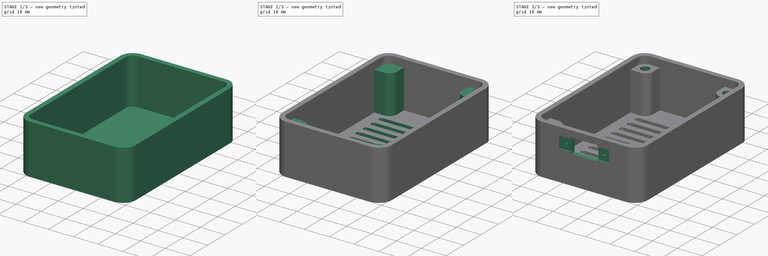
[diagram: build sequence overview — one tinted view per stage of 3, left to right]
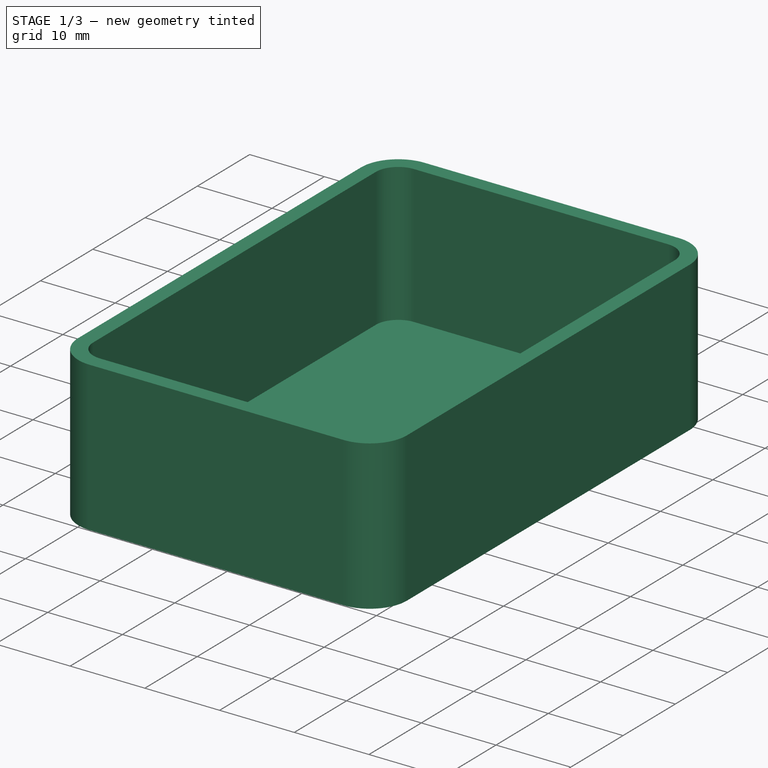
[diagram: stage 1 of 3 — iso view after this stage's code; geometry added in this stage tinted green]
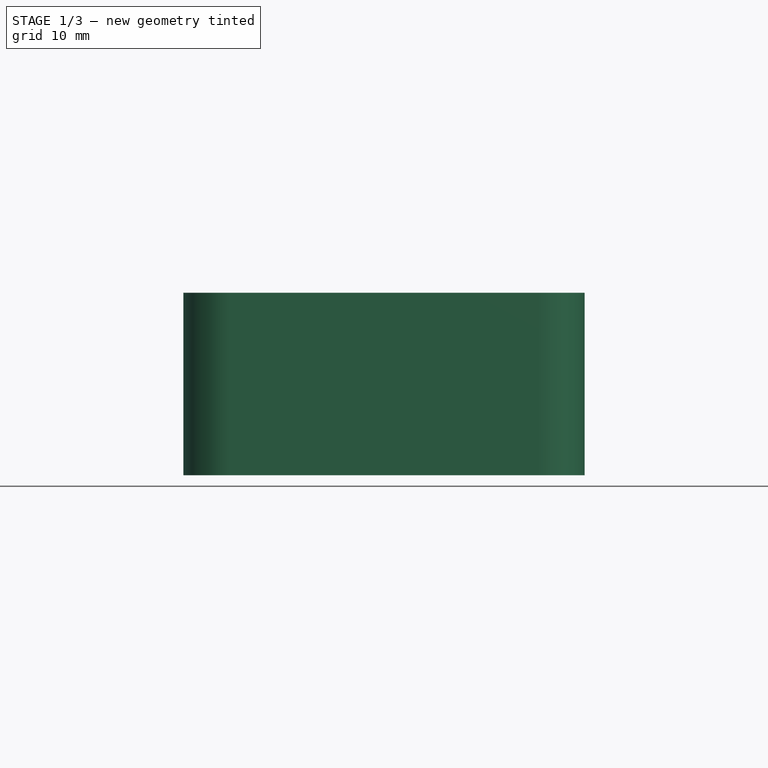
[diagram: stage 1 of 3 — front view after this stage's code; geometry added in this stage tinted green]
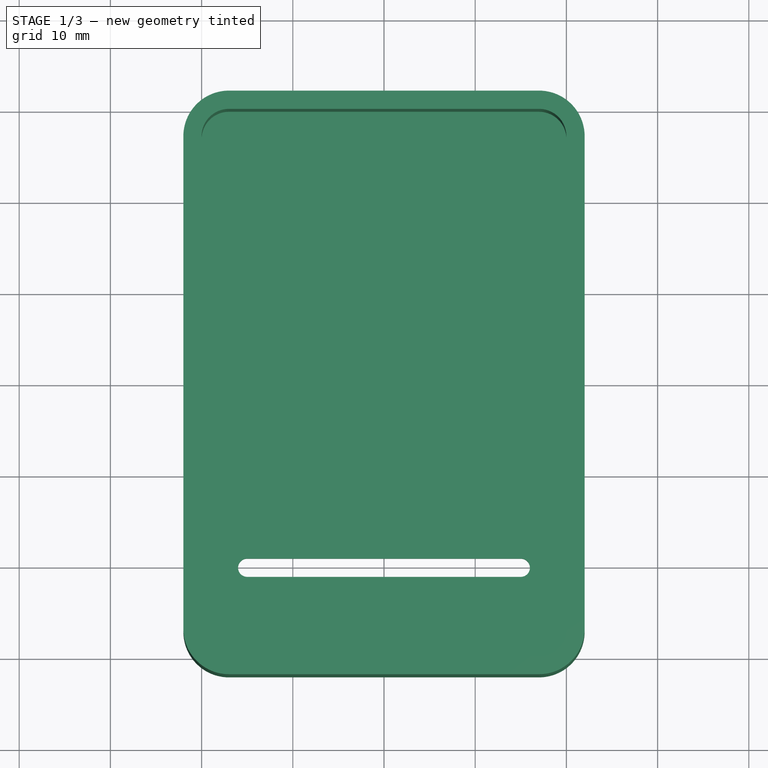
[diagram: stage 1 of 3 — top view after this stage's code; geometry added in this stage tinted green]
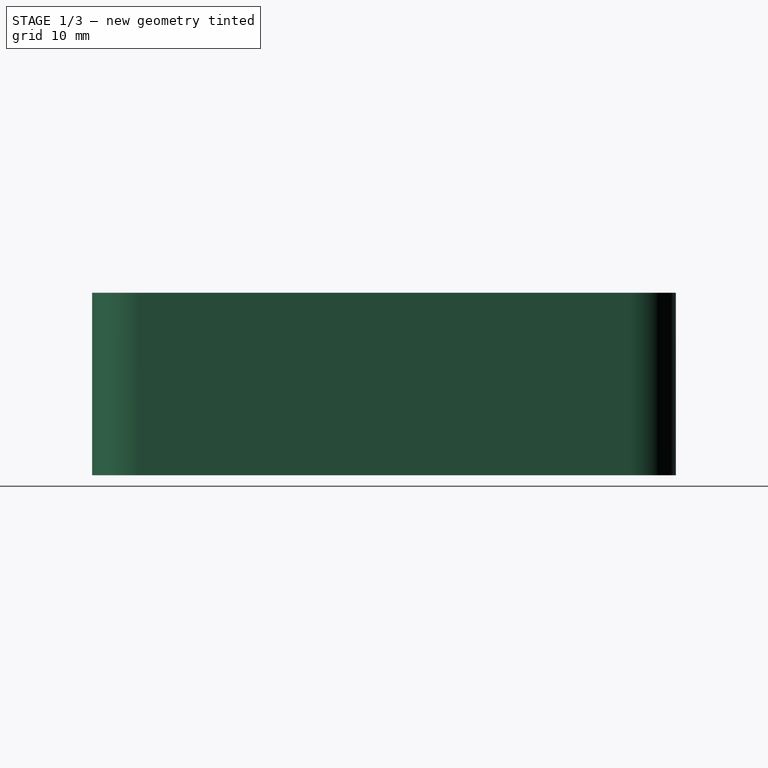
[diagram: stage 1 of 3 — right view after this stage's code; geometry added in this stage tinted green]
FCSTD DOCUMENT  (FreeCAD 0.20R29177 (Git))
Label: ESP01-body-v1
License: All rights reserved
LicenseURL: http://en.wikipedia.org/wiki/All_rights_reserved
objects: Sketcher::SketchObject×7, PartDesign::Pocket×5, PartDesign::Pad×2, PartDesign::LinearPattern×1, PartDesign::Body×1
note: 23 computed .brp shape members not serialized (recipe doc carries the construction recipe); baked Part::Feature solids carry a one-line shape summary decoded from their .brp

FEATURE [Sketcher::SketchObject] Sketch
  FullyConstrained = true
  MapMode = 5
  Support = -> [XY_Plane]
  sketch-geometry (8):
    g0: LineSegment StartX=-17 StartY=32 StartZ=0 EndX=17 EndY=32 EndZ=0
    g1: LineSegment StartX=22 StartY=27 StartZ=0 EndX=22 EndY=-27 EndZ=0
    g2: LineSegment StartX=17 StartY=-32 StartZ=0 EndX=-17 EndY=-32 EndZ=0
    g3: LineSegment StartX=-22 StartY=-27 StartZ=0 EndX=-22 EndY=27 EndZ=0
    g4: ArcOfCircle CenterX=-17 CenterY=27 CenterZ=0 NormalX=0 NormalY=0 NormalZ=1 AngleXU=0 Radius=5 StartAngle=1.5708 EndAngle=3.14159
    g5: ArcOfCircle CenterX=-17 CenterY=-27 CenterZ=0 NormalX=0 NormalY=0 NormalZ=1 AngleXU=0 Radius=5 StartAngle=3.14159 EndAngle=4.71239
    g6: ArcOfCircle CenterX=17 CenterY=27 CenterZ=0 NormalX=0 NormalY=0 NormalZ=1 AngleXU=0 Radius=5 StartAngle=0 EndAngle=1.5708
    g7: ArcOfCircle CenterX=17 CenterY=-27 CenterZ=0 NormalX=0 NormalY=0 NormalZ=1 AngleXU=0 Radius=5 StartAngle=4.71239 EndAngle=6.28319
  constraints (19):
    c: Horizontal(g0)
    c: Horizontal(g2)
    c: Vertical(g1)
    c: Vertical(g3)
    c: Tangent(g0,g4) = 1.5708
    c: Tangent(g3,g4) = 1.5708
    c: Tangent(g3,g5) = 1.5708
    c: Tangent(g2,g5) = 1.5708
    c: Tangent(g0,g6) = 1.5708
    c: Tangent(g1,g6) = 1.5708
    c: Tangent(g1,g7) = 1.5708
    c: Tangent(g2,g7) = 1.5708
    c: Equal(g7,g6)
    c: Equal(g6,g4)
    c: Equal(g4,g5)
    c: DistanceX(g3,g1) = 44
    c: DistanceY(g2,g0) = 64
    c: Radius(g7) = 5
    c: Symmetric(g6,g5,g-1)
FEATURE [PartDesign::Pad] Pad
  Direction = (0,0,1)
  Length = 20
  Length2 = 10
  Profile = -> Sketch
  ReferenceAxis = -> Sketch [N_Axis]
  Type = 0
FEATURE [Sketcher::SketchObject] Sketch001
  FullyConstrained = true
  MapMode = 5
  Placement = pos=(0,0,20) rot=(0,0,1;0rad)
  Support = -> [Pad]
  sketch-geometry (8):
    g0: LineSegment StartX=-17 StartY=30 StartZ=0 EndX=17 EndY=30 EndZ=0
    g1: LineSegment StartX=20 StartY=27 StartZ=0 EndX=20 EndY=-27 EndZ=0
    g2: LineSegment StartX=17 StartY=-30 StartZ=0 EndX=-17 EndY=-30 EndZ=0
    g3: LineSegment StartX=-20 StartY=-27 StartZ=0 EndX=-20 EndY=27 EndZ=0
    g4: ArcOfCircle CenterX=-17 CenterY=27 CenterZ=0 NormalX=0 NormalY=0 NormalZ=1 AngleXU=0 Radius=3 StartAngle=1.5708 EndAngle=3.14159
    g5: ArcOfCircle CenterX=17 CenterY=27 CenterZ=0 NormalX=0 NormalY=0 NormalZ=1 AngleXU=0 Radius=3 StartAngle=7.1e-15 EndAngle=1.5708
    g6: ArcOfCircle CenterX=17 CenterY=-27 CenterZ=0 NormalX=0 NormalY=0 NormalZ=1 AngleXU=0 Radius=3 StartAngle=4.71239 EndAngle=6.28319
    g7: ArcOfCircle CenterX=-17 CenterY=-27 CenterZ=0 NormalX=0 NormalY=0 NormalZ=1 AngleXU=0 Radius=3 StartAngle=3.14159 EndAngle=4.71239
  constraints (19):
    c: Horizontal(g0)
    c: Horizontal(g2)
    c: Vertical(g1)
    c: Vertical(g3)
    c: Tangent(g3,g4) = 1.5708
    c: Tangent(g0,g4) = 1.5708
    c: Tangent(g0,g5) = 1.5708
    c: Tangent(g1,g5) = 1.5708
    c: Tangent(g1,g6) = 1.5708
    c: Tangent(g2,g6) = 1.5708
    c: Tangent(g3,g7) = 1.5708
    c: Tangent(g2,g7) = 1.5708
    c: Equal(g7,g6)
    c: Equal(g6,g5)
    c: Equal(g5,g4)
    c: DistanceX(g3,g1) = 40
    c: DistanceY(g2,g0) = 60
    c: Symmetric(g4,g6,g-1)
    c: Radius(g4) = 3
FEATURE [PartDesign::Pocket] Pocket
  BaseFeature = -> Pad
  Direction = (0,0,-1)
  Length = 18.5
  Length2 = 5
  Profile = -> Sketch001
  ReferenceAxis = -> Sketch001 [N_Axis]
  Type = 0
FEATURE [Sketcher::SketchObject] Sketch002
  FullyConstrained = true
  MapMode = 5
  Placement = pos=(0,0,0) rot=(1,0,0;3.14159rad)
  Support = -> [Pocket]
  sketch-geometry (4):
    g0: ArcOfCircle CenterX=-15 CenterY=20 CenterZ=0 NormalX=0 NormalY=0 NormalZ=1 AngleXU=0 Radius=1 StartAngle=1.5708 EndAngle=4.71239
    g1: ArcOfCircle CenterX=15 CenterY=20 CenterZ=0 NormalX=0 NormalY=0 NormalZ=1 AngleXU=0 Radius=1 StartAngle=4.71239 EndAngle=7.85398
    g2: LineSegment StartX=-15 StartY=19 StartZ=0 EndX=15 EndY=19 EndZ=0
    g3: LineSegment StartX=15 StartY=21 StartZ=0 EndX=-15 EndY=21 EndZ=0
  constraints (9):
    c: Tangent(g0,g2) = -1.5708
    c: Tangent(g2,g1) = -1.5708
    c: Tangent(g1,g3) = -1.5708
    c: Tangent(g3,g0) = -1.5708
    c: Equal(g0,g1)
    c: DistanceY(g1,g1) = 2
    c: Symmetric(g1,g0,g-2)
    c: DistanceX(g3,g3) = 30
    c: DistanceY(g-1,g0) = 20
FEATURE [PartDesign::Pocket] Pocket001
  BaseFeature = -> Pocket
  Direction = (0,0,1)
  Length = 5
  Length2 = 5
  Profile = -> Sketch002
  ReferenceAxis = -> Sketch002 [N_Axis]
  Type = 0
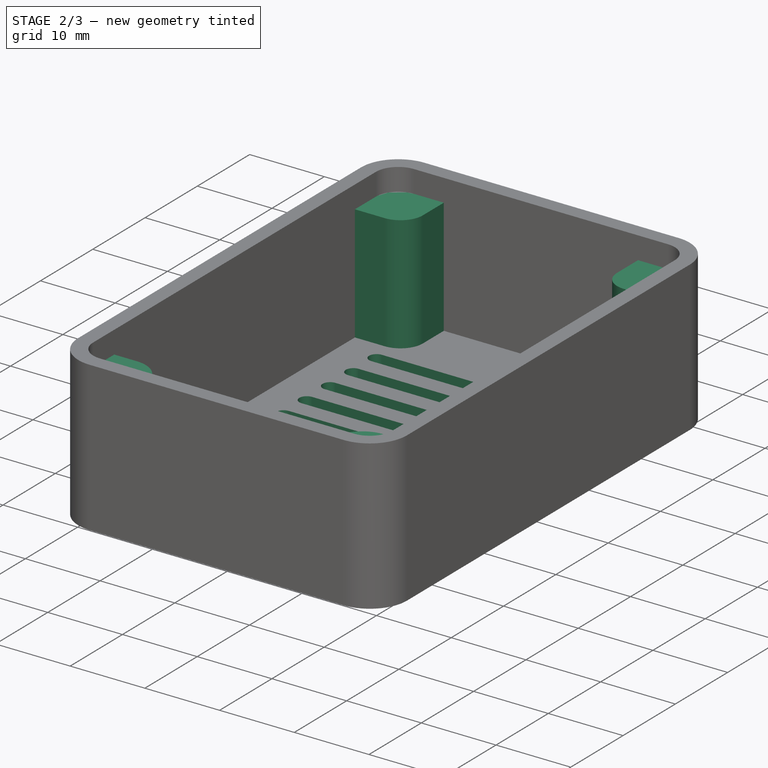
[diagram: stage 2 of 3 — iso view after this stage's code; geometry added in this stage tinted green]
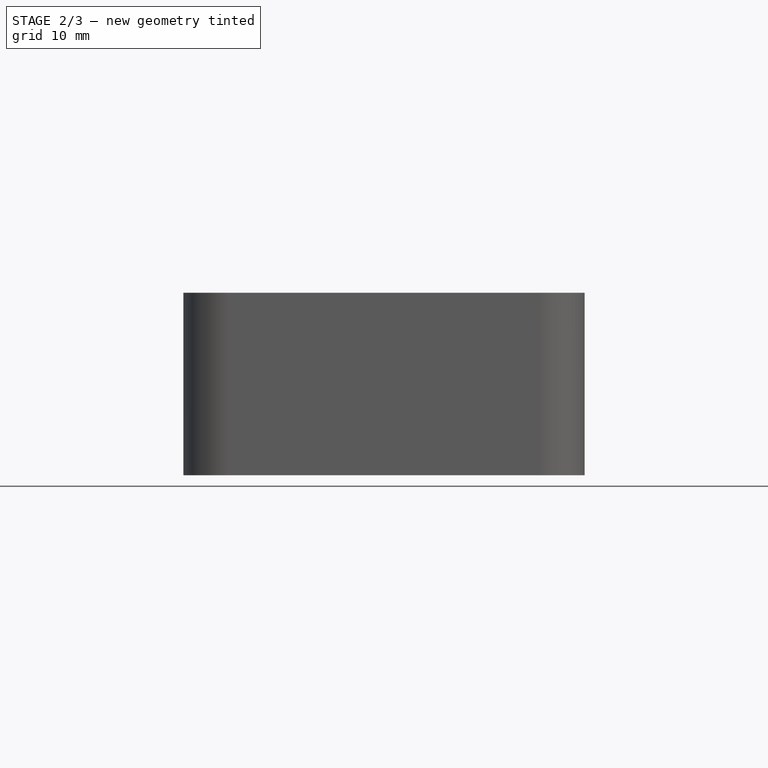
[diagram: stage 2 of 3 — front view after this stage's code; geometry added in this stage tinted green]
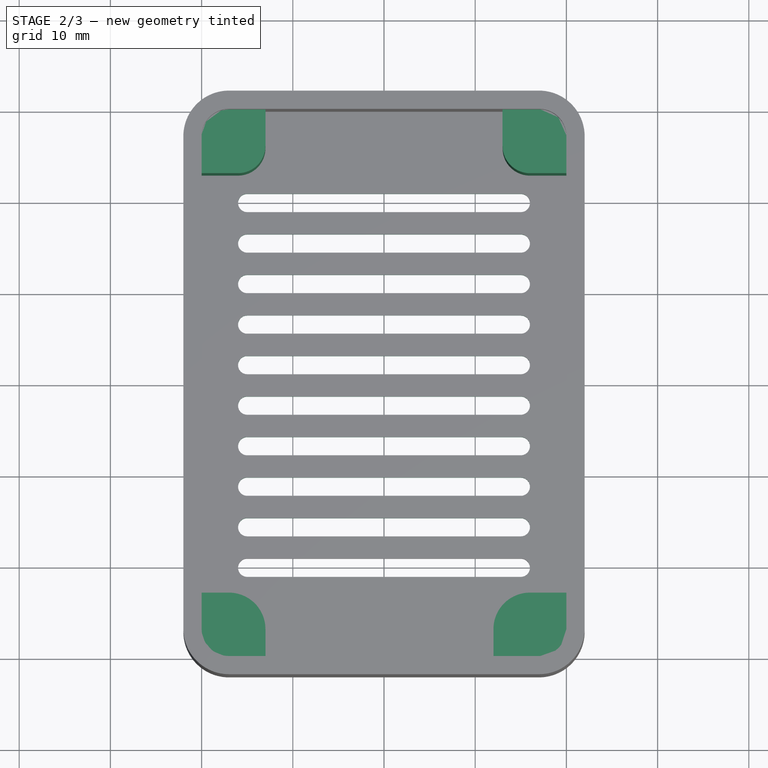
[diagram: stage 2 of 3 — top view after this stage's code; geometry added in this stage tinted green]
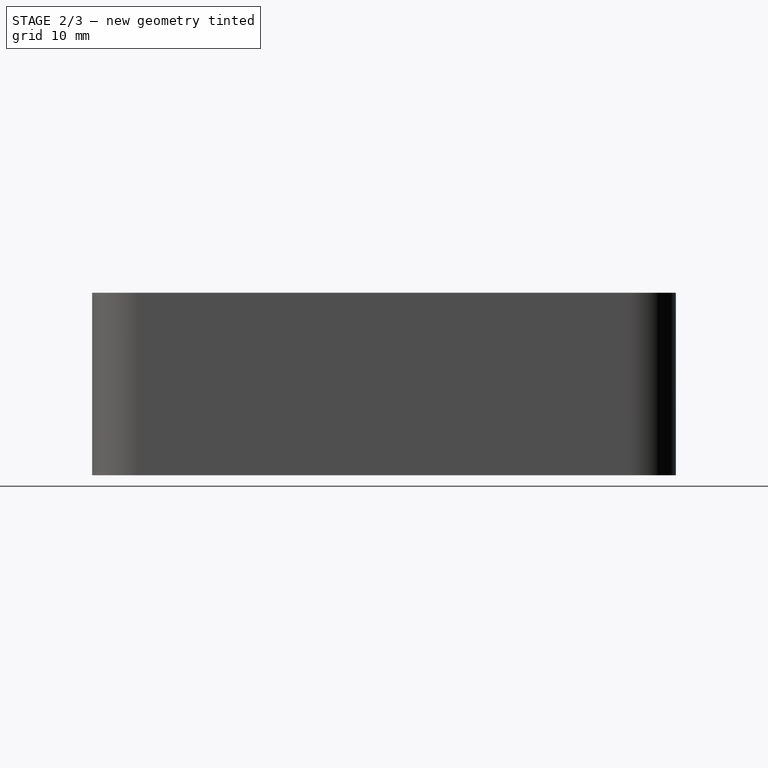
[diagram: stage 2 of 3 — right view after this stage's code; geometry added in this stage tinted green]
FEATURE [PartDesign::LinearPattern] LinearPattern
  BaseFeature = -> Pocket001
  Direction = -> Sketch002 [V_Axis]
  Length = 40
  Occurrences = 10
  Originals = -> [Pocket001]
  Reversed = true
FEATURE [Sketcher::SketchObject] Sketch003
  ExternalGeometry = -> [LinearPattern]
  FullyConstrained = true
  MapMode = 5
  Placement = pos=(0,0,1.5) rot=(0,0,1;0rad)
  Support = -> [LinearPattern]
  sketch-geometry (24):
    g0: LineSegment StartX=-17 StartY=30 StartZ=0 EndX=-13 EndY=30 EndZ=0
    g1: LineSegment StartX=-13 StartY=30 StartZ=0 EndX=-13 EndY=26 EndZ=0
    g2: LineSegment StartX=-16 StartY=23 StartZ=0 EndX=-20 EndY=23 EndZ=0
    g3: LineSegment StartX=13 StartY=30 StartZ=0 EndX=17 EndY=30 EndZ=0
    g4: LineSegment StartX=20 StartY=27 StartZ=0 EndX=20 EndY=23 EndZ=0
    g5: LineSegment StartX=20 StartY=23 StartZ=0 EndX=16 EndY=23 EndZ=0
    g6: LineSegment StartX=13 StartY=26 StartZ=0 EndX=13 EndY=30 EndZ=0
    g7: LineSegment StartX=-21 StartY=-23 StartZ=0 EndX=-17 EndY=-23 EndZ=0
    g8: LineSegment StartX=-13 StartY=-27 StartZ=0 EndX=-13 EndY=-31 EndZ=0
    g9: LineSegment StartX=-13 StartY=-31 StartZ=0 EndX=-17 EndY=-31 EndZ=0
    g10: LineSegment StartX=-21 StartY=-27 StartZ=0 EndX=-21 EndY=-23 EndZ=0
    g11: LineSegment StartX=16 StartY=-23 StartZ=0 EndX=20 EndY=-23 EndZ=0
    g12: LineSegment StartX=20 StartY=-23 StartZ=0 EndX=20 EndY=-27 EndZ=0
    g13: LineSegment StartX=16 StartY=-31 StartZ=0 EndX=12 EndY=-31 EndZ=0
    g14: LineSegment StartX=12 StartY=-31 StartZ=0 EndX=12 EndY=-27 EndZ=0
    g15: ArcOfCircle CenterX=-16 CenterY=26 CenterZ=0 NormalX=0 NormalY=0 NormalZ=1 AngleXU=0 Radius=3 StartAngle=4.71239 EndAngle=6.28319
    g16: ArcOfCircle CenterX=-17 CenterY=-27 CenterZ=0 NormalX=0 NormalY=0 NormalZ=1 AngleXU=0 Radius=4 StartAngle=2.448e-13 EndAngle=1.5708
    g17: ArcOfCircle CenterX=-17 CenterY=-27 CenterZ=0 NormalX=0 NormalY=0 NormalZ=1 AngleXU=0 Radius=4 StartAngle=3.14159 EndAngle=4.71239
    g18: ArcOfCircle CenterX=16 CenterY=-27 CenterZ=0 NormalX=0 NormalY=0 NormalZ=1 AngleXU=0 Radius=4 StartAngle=1.5708 EndAngle=3.14159
    g19: ArcOfCircle CenterX=16 CenterY=-27 CenterZ=0 NormalX=0 NormalY=0 NormalZ=1 AngleXU=0 Radius=4 StartAngle=4.71239 EndAngle=6.28319
    g20: ArcOfCircle CenterX=16 CenterY=26 CenterZ=0 NormalX=0 NormalY=0 NormalZ=1 AngleXU=0 Radius=3 StartAngle=3.14159 EndAngle=4.71239
    g21: ArcOfCircle CenterX=17 CenterY=27 CenterZ=0 NormalX=0 NormalY=0 NormalZ=1 AngleXU=0 Radius=3 StartAngle=0 EndAngle=1.5708
    g22: LineSegment StartX=-20 StartY=27 StartZ=0 EndX=-20 EndY=23 EndZ=0
    g23: ArcOfCircle CenterX=-17 CenterY=27 CenterZ=0 NormalX=0 NormalY=0 NormalZ=1 AngleXU=0 Radius=3 StartAngle=1.5708 EndAngle=3.14159
  constraints (60):
    c: Coincident(g0,g1)
    c: Horizontal(g0)
    c: Horizontal(g2)
    c: Vertical(g1)
    c: Coincident(g4,g5)
    c: Coincident(g6,g3)
    c: Horizontal(g3)
    c: Horizontal(g5)
    c: Vertical(g4)
    c: Vertical(g6)
    c: Coincident(g8,g9)
    c: Coincident(g10,g7)
    c: Horizontal(g7)
    c: Horizontal(g9)
    c: Vertical(g8)
    c: Vertical(g10)
    c: Coincident(g11,g12)
    c: Coincident(g13,g14)
    c: Horizontal(g11)
    c: Horizontal(g13)
    c: Vertical(g12)
    c: Vertical(g14)
    c: Tangent(g2,g15) = 1.5708
    c: Tangent(g1,g15) = 1.5708
    c: Tangent(g7,g16) = 1.5708
    c: Tangent(g8,g16) = 1.5708
    c: Tangent(g10,g17) = 1.5708
    c: Tangent(g9,g17) = 1.5708
    c: Tangent(g14,g18) = 1.5708
    c: Tangent(g11,g18) = 1.5708
    c: Tangent(g12,g19) = 1.5708
    c: Tangent(g13,g19) = 1.5708
    c: Tangent(g6,g20) = 1.5708
    c: Tangent(g5,g20) = 1.5708
    c: Tangent(g3,g21) = 1.5708
    c: Tangent(g4,g21) = 1.5708
    c: Equal(g21,g20)
    c: Equal(g20,g15)
    c: Equal(g16,g17)
    c: Equal(g17,g18)
    c: Equal(g18,g19)
    c: Equal(g1,g8)
    c: Equal(g8,g14)
    c: Equal(g14,g6)
    c: Radius(g21) = 3
    c: Equal(g3,g4)
    c: Horizontal(g8,g13)
    c: Vertical(g11,g4)
    c: Equal(g13,g4)
    c: Coincident(g17,g-4)
    c: Coincident(g21,g-5)
    c: DistanceY(g6,g6) = 4
    c: Coincident(g22,g2)
    c: Tangent(g22,g23) = -1.5708
    c: Tangent(g0,g23) = 1.5708
    c: Vertical(g22)
    c: Equal(g15,g23)
    c: Equal(g2,g22)
    c: Coincident(g23,g-3)
    c: Coincident(g16,g17)
FEATURE [PartDesign::Pad] Pad001
  BaseFeature = -> LinearPattern
  Direction = (0,0,1)
  Length = 15.5
  Length2 = 10
  Profile = -> Sketch003
  ReferenceAxis = -> Sketch003 [N_Axis]
  Type = 0
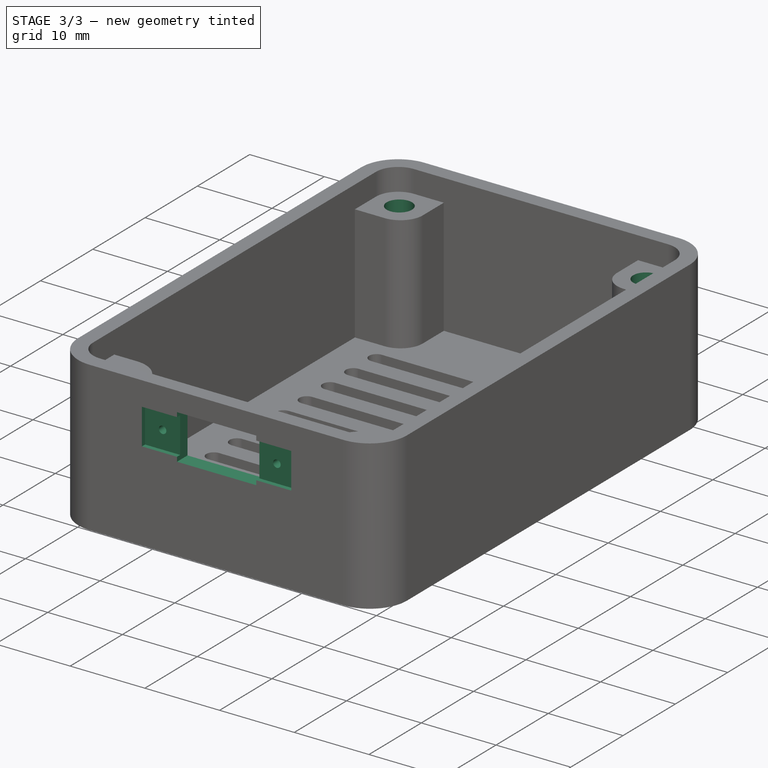
[diagram: stage 3 of 3 — iso view after this stage's code; geometry added in this stage tinted green]
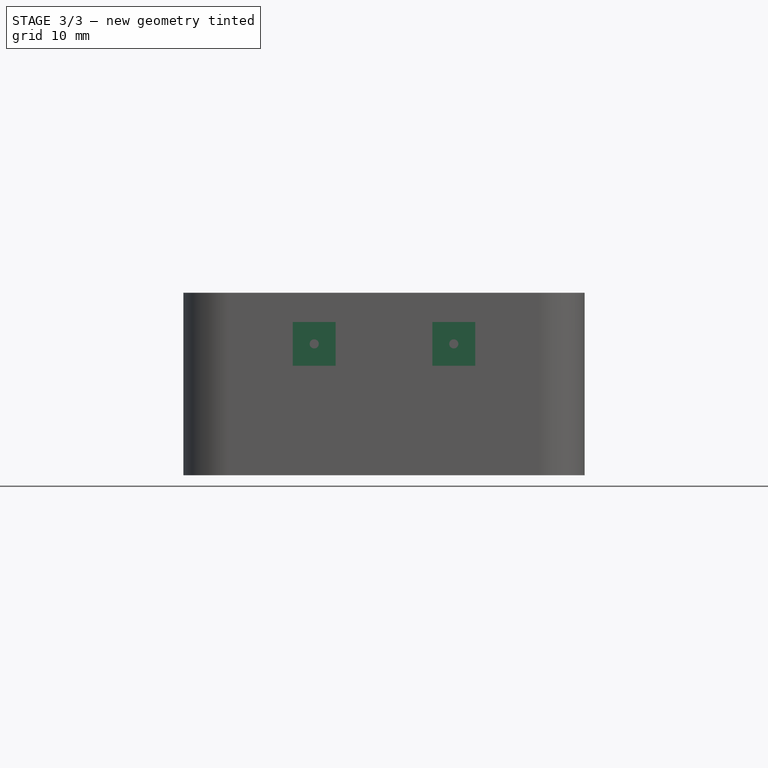
[diagram: stage 3 of 3 — front view after this stage's code; geometry added in this stage tinted green]
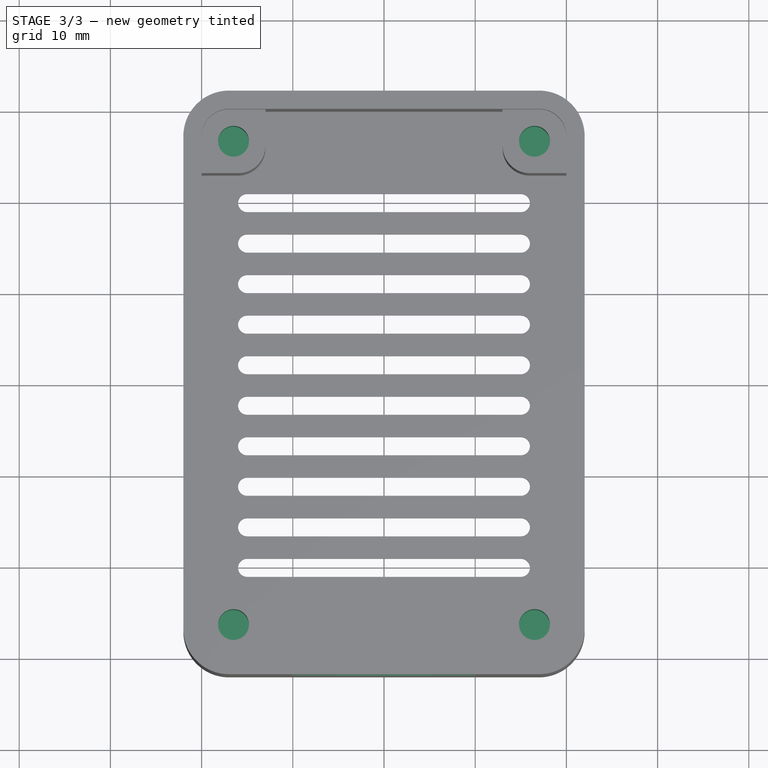
[diagram: stage 3 of 3 — top view after this stage's code; geometry added in this stage tinted green]
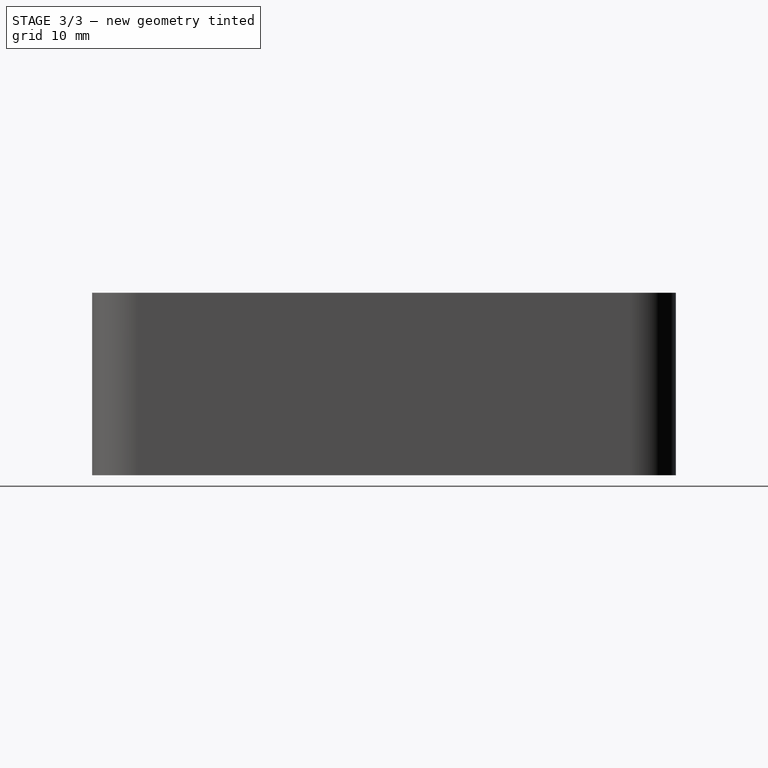
[diagram: stage 3 of 3 — right view after this stage's code; geometry added in this stage tinted green]
FEATURE [Sketcher::SketchObject] Sketch004
  ExternalGeometry = -> [Pad001]
  FullyConstrained = true
  MapMode = 5
  Placement = pos=(0,0,17) rot=(0,0,1;0rad)
  Support = -> [Pad001]
  sketch-geometry (4):
    g0: Circle CenterX=16.5 CenterY=26.5 CenterZ=0 NormalX=0 NormalY=0 NormalZ=1 AngleXU=0 Radius=1.69
    g1: Circle CenterX=-16.5 CenterY=26.5 CenterZ=0 NormalX=0 NormalY=0 NormalZ=1 AngleXU=0 Radius=1.69
    g2: Circle CenterX=-16.5 CenterY=-26.5 CenterZ=0 NormalX=0 NormalY=0 NormalZ=1 AngleXU=0 Radius=1.69
    g3: Circle CenterX=16.5 CenterY=-26.5 CenterZ=0 NormalX=0 NormalY=0 NormalZ=1 AngleXU=0 Radius=1.69
  constraints (8):
    c: Symmetric(g1,g0,g-2)
    c: Symmetric(g2,g3,g-2)
    c: Symmetric(g2,g1,g-1)
    c: Equal(g2,g3)
    c: Equal(g3,g0)
    c: Equal(g0,g1)
    c: Diameter(g1) = 3.38
    c: Symmetric(g-6,g-4,g1)
FEATURE [PartDesign::Pocket] Pocket002
  BaseFeature = -> Pad001
  Direction = (0,0,-1)
  Length = 6
  Length2 = 5
  Profile = -> Sketch004
  ReferenceAxis = -> Sketch004 [N_Axis]
  Type = 0
FEATURE [Sketcher::SketchObject] Sketch005
  FullyConstrained = true
  MapMode = 5
  Placement = pos=(0,-32,0) rot=(1,0,0;1.5708rad)
  Support = -> [Pocket002]
  sketch-geometry (4):
    g0: LineSegment StartX=-10 StartY=16.8 StartZ=0 EndX=10 EndY=16.8 EndZ=0
    g1: LineSegment StartX=10 StartY=16.8 StartZ=0 EndX=10 EndY=12 EndZ=0
    g2: LineSegment StartX=10 StartY=12 StartZ=0 EndX=-10 EndY=12 EndZ=0
    g3: LineSegment StartX=-10 StartY=12 StartZ=0 EndX=-10 EndY=16.8 EndZ=0
  constraints (11):
    c: Coincident(g0,g1)
    c: Coincident(g1,g2)
    c: Coincident(g2,g3)
    c: Coincident(g3,g0)
    c: Horizontal(g0)
    c: Vertical(g1)
    c: Vertical(g3)
    c: Symmetric(g1,g2,g-2)
    c: DistanceX(g0,g0) = 20
    c: DistanceY(g3,g3) = 4.8
    c: DistanceY(g-1,g1) = 12
FEATURE [PartDesign::Pocket] Pocket003
  BaseFeature = -> Pocket002
  Direction = (0,1,-2e-16)
  Length = 0.6
  Length2 = 5
  Profile = -> Sketch005
  ReferenceAxis = -> Sketch005 [N_Axis]
  Type = 0
FEATURE [Sketcher::SketchObject] Sketch006
  ExternalGeometry = -> [Pocket003]
  FullyConstrained = true
  MapMode = 5
  Placement = pos=(0,-32,0) rot=(1,0,0;1.5708rad)
  Support = -> [Pocket003]
  sketch-geometry (7):
    g0: LineSegment StartX=-5.3 StartY=17.4 StartZ=0 EndX=5.3 EndY=17.4 EndZ=0
    g1: LineSegment StartX=5.3 StartY=17.4 StartZ=0 EndX=5.3 EndY=11.4 EndZ=0
    g2: LineSegment StartX=5.3 StartY=11.4 StartZ=0 EndX=-5.3 EndY=11.4 EndZ=0
    g3: LineSegment StartX=-5.3 StartY=11.4 StartZ=0 EndX=-5.3 EndY=17.4 EndZ=0
    g4: LineSegment StartX=10 StartY=14.4 StartZ=0 EndX=5.3 EndY=14.4 EndZ=0
    g5: Circle CenterX=7.65 CenterY=14.4 CenterZ=0 NormalX=0 NormalY=0 NormalZ=1 AngleXU=0 Radius=0.5
    g6: Circle CenterX=-7.65 CenterY=14.4 CenterZ=0 NormalX=0 NormalY=0 NormalZ=1 AngleXU=0 Radius=0.5
  constraints (17):
    c: Coincident(g0,g1)
    c: Coincident(g1,g2)
    c: Coincident(g2,g3)
    c: Coincident(g3,g0)
    c: Horizontal(g2)
    c: Vertical(g1)
    c: Vertical(g3)
    c: DistanceY(g1,g1) = 6
    c: DistanceX(g0,g0) = 10.6
    c: Horizontal(g4)
    c: Symmetric(g-3,g-4,g4)
    c: Symmetric(g0,g1,g4)
    c: Symmetric(g0,g0,g-2)
    c: Symmetric(g5,g6,g-2)
    c: Equal(g6,g5)
    c: Diameter(g5) = 1
    c: Symmetric(g4,g4,g5)
FEATURE [PartDesign::Pocket] Pocket004
  BaseFeature = -> Pocket003
  Direction = (0,1,-2e-16)
  Length = 5
  Length2 = 5
  Profile = -> Sketch006
  ReferenceAxis = -> Sketch006 [N_Axis]
  Type = 0
FEATURE [PartDesign::Body] Body
  Group = -> [Sketch,Pad,Sketch001,Pocket,Sketch002,Pocket001,LinearPattern,Sketch003,Pad001,Sketch004,Pocket002,Sketch005,Pocket003,Sketch006,Pocket004]
  Origin = -> Origin
  Tip = -> Pocket004
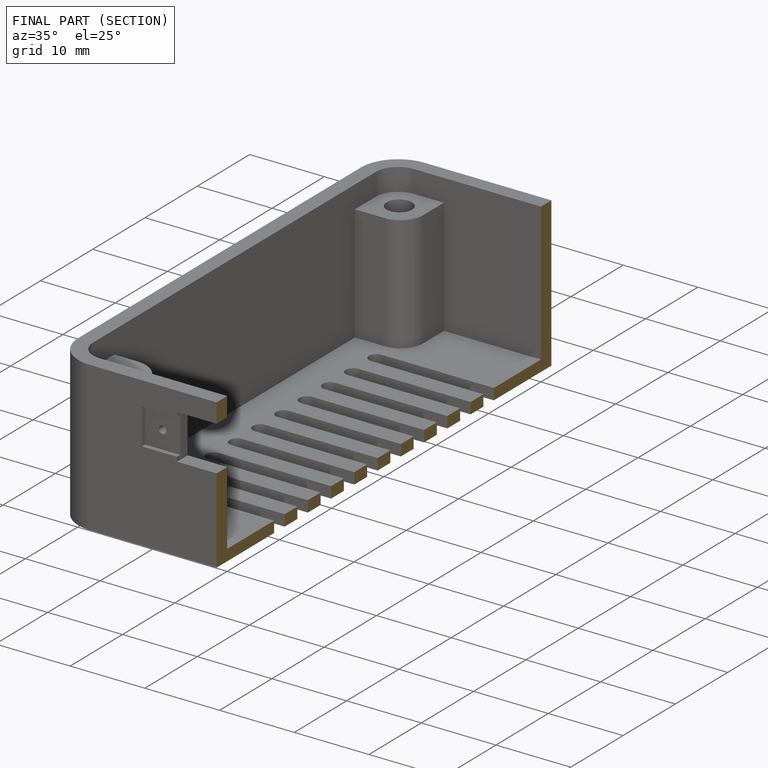
[diagram: finished part — half-section view (interior)]
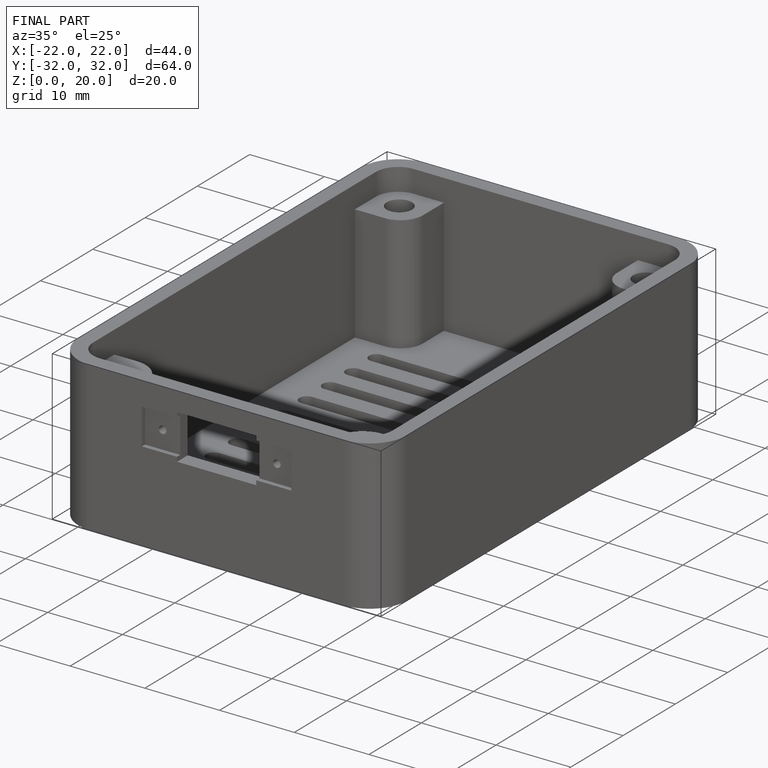
[diagram: finished part — iso view with bounding-box wireframe]
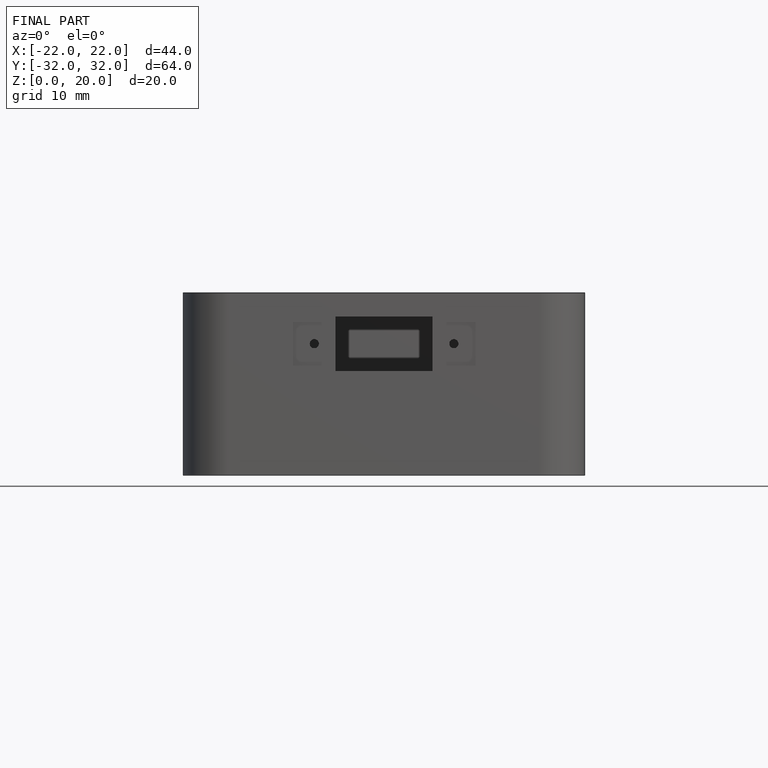
[diagram: finished part — front view with bounding-box wireframe]
